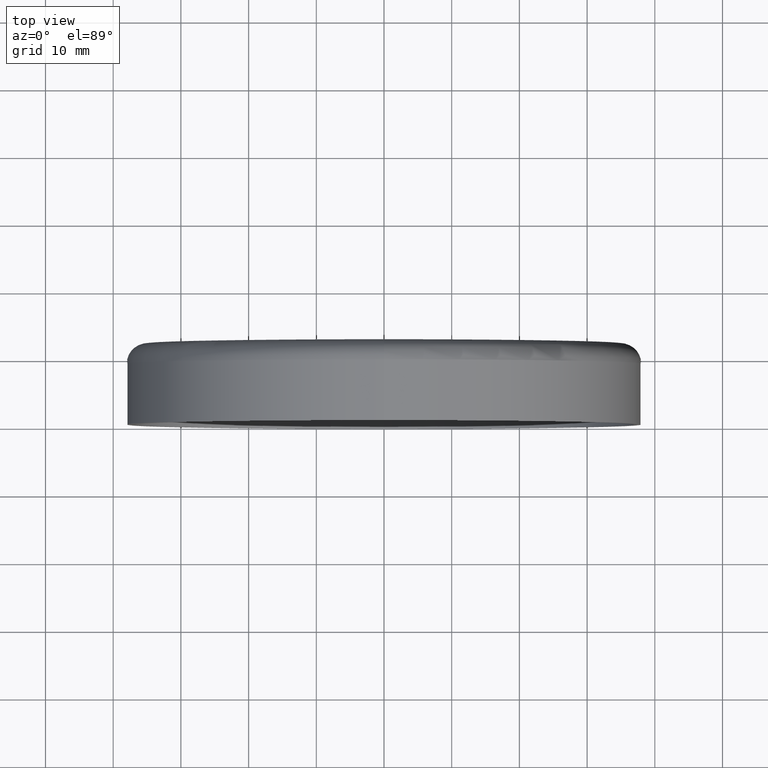
[diagram: clean part render]
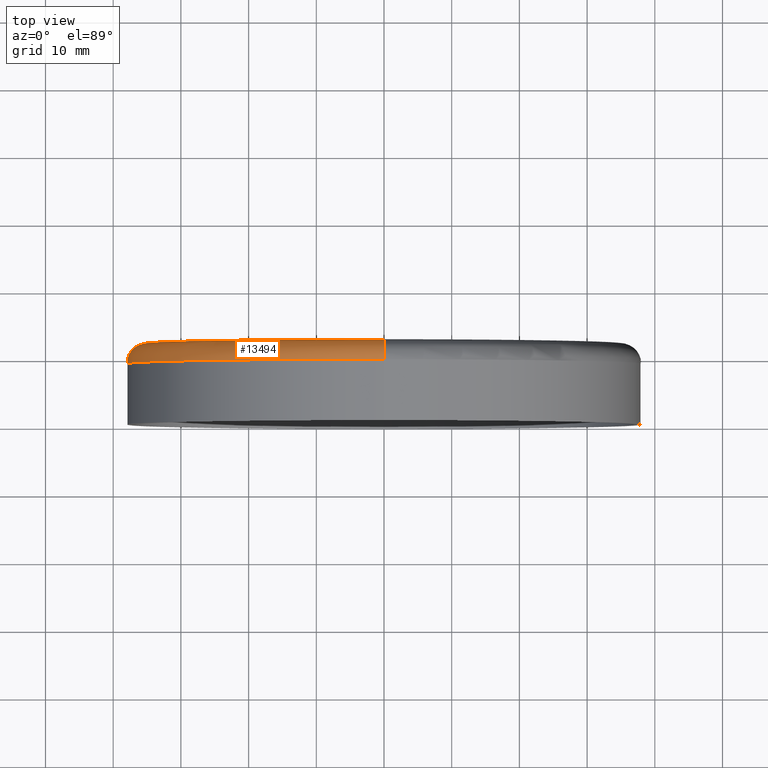
[diagram: same view with one face highlighted and labeled with its STEP entity id]
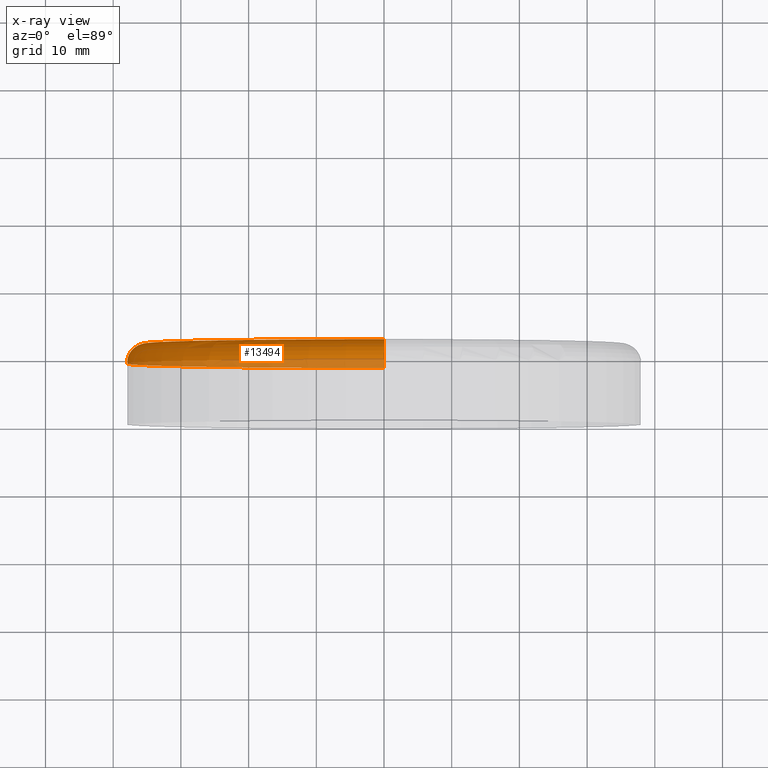
[diagram: x-ray of the same camera — body ghosted, the highlighted face saturated]
A machine part, top view. The second image highlights one B-rep face of the part: STEP entity #13494.
The next image is the same camera in x-ray: the body ghosted, the highlighted face saturated — about 27% of this face is hidden behind the body in this view.
In plain terms, the highlighted toroidal blend (fillet) surface has major radius 35 mm and minor (blend) radius 3 mm.
Its self-contained STEP definition (entity closure, byte-faithful):
#369 = VERTEX_POINT ( 'NONE', #5139 ) ;
#1020 = CARTESIAN_POINT ( 'NONE',  ( 4.286263797015736496E-15, 9.000000000000001776, 35.00000000000000000 ) ) ;
#1152 = DIRECTION ( 'NONE',  ( -0.000000000000000000, -1.000000000000000000, -0.000000000000000000 ) ) ;
#1507 = TOROIDAL_SURFACE ( 'NONE', #15626, 35.00000000000000000, 3.000000000000000888 ) ;
#1714 = AXIS2_PLACEMENT_3D ( 'NONE', #9627, #13442, #15935 ) ;
#2677 = VERTEX_POINT ( 'NONE', #14003 ) ;
#3776 = AXIS2_PLACEMENT_3D ( 'NONE', #14842, #9784, #8740 ) ;
#4202 = EDGE_CURVE ( 'NONE', #369, #14778, #13858, .T. ) ;
#4842 = FACE_OUTER_BOUND ( 'NONE', #13519, .T. ) ;
#5139 = CARTESIAN_POINT ( 'NONE',  ( 4.469960816887840007E-15, 12.00000000000000000, 35.00000000000000000 ) ) ;
#5372 = CIRCLE ( 'NONE', #1714, 3.000000000000002665 ) ;
#6273 = DIRECTION ( 'NONE',  ( 0.000000000000000000, 0.000000000000000000, -1.000000000000000000 ) ) ;
#6657 = AXIS2_PLACEMENT_3D ( 'NONE', #1020, #7205, #7043 ) ;
#7043 = DIRECTION ( 'NONE',  ( -1.224646799147351975E-16, 0.000000000000000000, -1.000000000000000000 ) ) ;
#7153 = EDGE_CURVE ( 'NONE', #369, #2677, #10165, .T. ) ;
#7205 = DIRECTION ( 'NONE',  ( 1.000000000000000000, 0.000000000000000000, -1.224646799147353207E-16 ) ) ;
#7456 = DIRECTION ( 'NONE',  ( -0.000000000000000000, -1.000000000000000000, -0.000000000000000000 ) ) ;
#7590 = AXIS2_PLACEMENT_3D ( 'NONE', #15183, #1152, #9846 ) ;
#7620 = CARTESIAN_POINT ( 'NONE',  ( 0.000000000000000000, 9.000000000000001776, 0.000000000000000000 ) ) ;
#8344 = EDGE_CURVE ( 'NONE', #2677, #13219, #9955, .T. ) ;
#8740 = DIRECTION ( 'NONE',  ( 0.000000000000000000, 0.000000000000000000, -1.000000000000000000 ) ) ;
#9138 = ORIENTED_EDGE ( 'NONE', *, *, #15942, .T. ) ;
#9627 = CARTESIAN_POINT ( 'NONE',  ( 0.000000000000000000, 9.000000000000001776, -35.00000000000000000 ) ) ;
#9784 = DIRECTION ( 'NONE',  ( -0.000000000000000000, -1.000000000000000000, -0.000000000000000000 ) ) ;
#9846 = DIRECTION ( 'NONE',  ( 0.000000000000000000, 0.000000000000000000, -1.000000000000000000 ) ) ;
#9955 = CIRCLE ( 'NONE', #3776, 38.00000000000000711 ) ;
#10165 = CIRCLE ( 'NONE', #6657, 3.000000000000002665 ) ;
#10443 = ORIENTED_EDGE ( 'NONE', *, *, #4202, .T. ) ;
#11329 = CARTESIAN_POINT ( 'NONE',  ( 0.000000000000000000, 9.000000000000001776, -38.00000000000000711 ) ) ;
#11330 = CARTESIAN_POINT ( 'NONE',  ( 0.000000000000000000, 12.00000000000000000, -35.00000000000000000 ) ) ;
#11444 = ORIENTED_EDGE ( 'NONE', *, *, #7153, .F. ) ;
#13219 = VERTEX_POINT ( 'NONE', #11329 ) ;
#13442 = DIRECTION ( 'NONE',  ( -1.000000000000000000, 0.000000000000000000, 0.000000000000000000 ) ) ;
#13494 = ADVANCED_FACE ( 'NONE', ( #4842 ), #1507, .T. ) ;
#13519 = EDGE_LOOP ( 'NONE', ( #11444, #10443, #9138, #14731 ) ) ;
#13858 = CIRCLE ( 'NONE', #7590, 35.00000000000000000 ) ;
#14003 = CARTESIAN_POINT ( 'NONE',  ( 4.653657836759942730E-15, 9.000000000000001776, 38.00000000000000711 ) ) ;
#14731 = ORIENTED_EDGE ( 'NONE', *, *, #8344, .F. ) ;
#14778 = VERTEX_POINT ( 'NONE', #11330 ) ;
#14842 = CARTESIAN_POINT ( 'NONE',  ( 0.000000000000000000, 9.000000000000001776, 0.000000000000000000 ) ) ;
#15183 = CARTESIAN_POINT ( 'NONE',  ( 0.000000000000000000, 12.00000000000000000, 0.000000000000000000 ) ) ;
#15626 = AXIS2_PLACEMENT_3D ( 'NONE', #7620, #7456, #6273 ) ;
#15935 = DIRECTION ( 'NONE',  ( 0.000000000000000000, 0.000000000000000000, 1.000000000000000000 ) ) ;
#15942 = EDGE_CURVE ( 'NONE', #14778, #13219, #5372, .T. ) ;